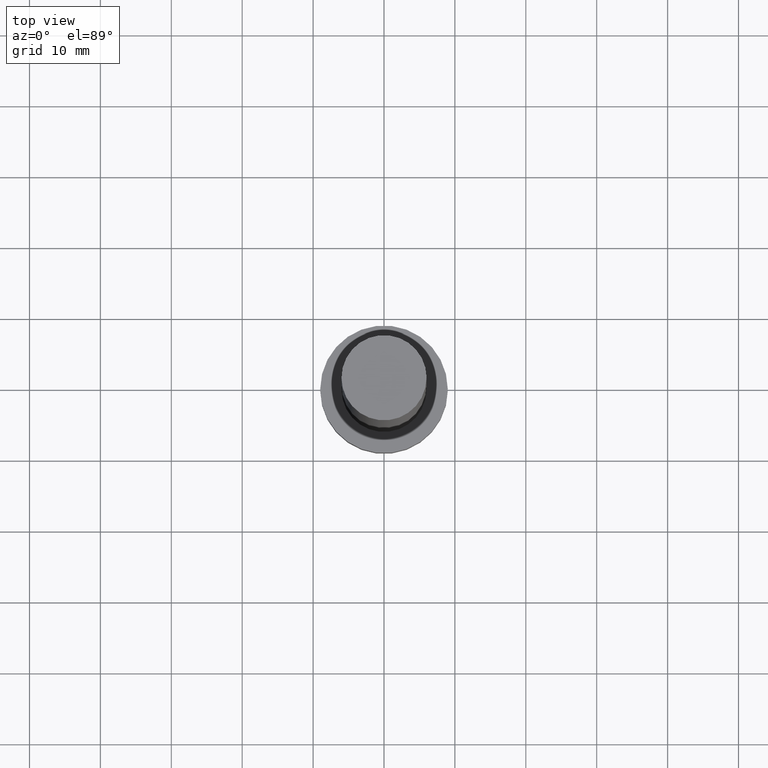
[diagram: clean part render]
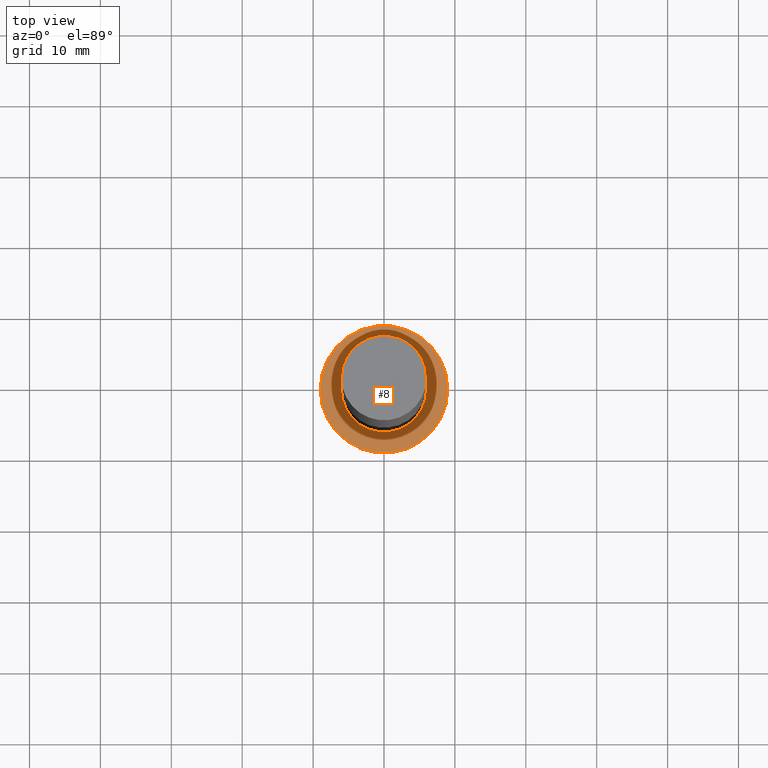
[diagram: same view with one face highlighted and labeled with its STEP entity id]
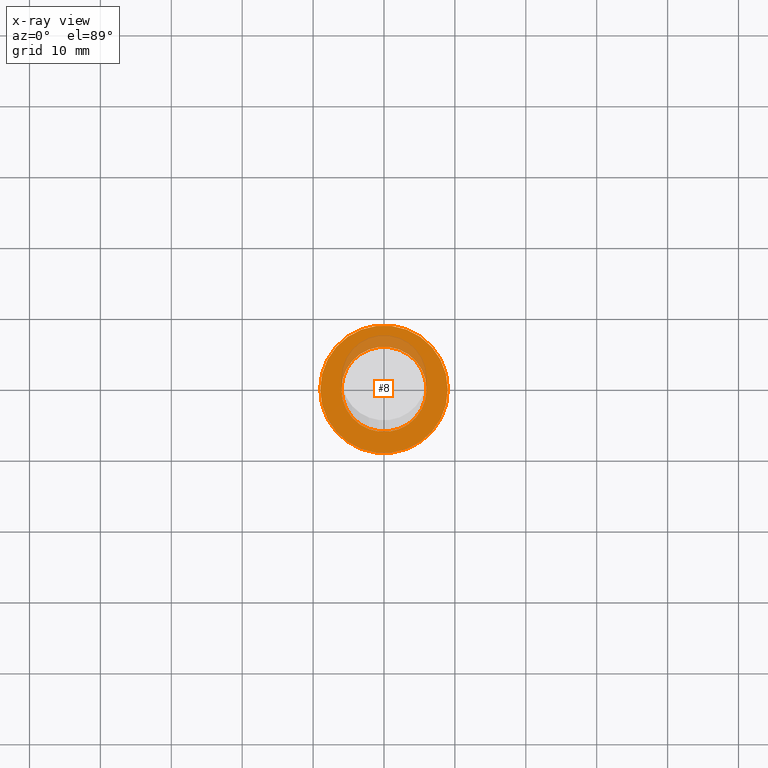
[diagram: x-ray of the same camera — body ghosted, the highlighted face saturated]
A machine part, top view. The second image highlights one B-rep face of the part: STEP entity #8.
The next image is the same camera in x-ray: the body ghosted, the highlighted face saturated — about 14% of this face is hidden behind the body in this view.
In plain terms, the highlighted planar face has unit normal (0, 0, 1).
Its self-contained STEP definition (entity closure, byte-faithful):
#8 = ADVANCED_FACE ( 'NONE', ( #182, #87 ), #131, .T. ) ;
#10 = CARTESIAN_POINT ( 'NONE',  ( 0.000000000000000000, 0.000000000000000000, 7.000000000000000000 ) ) ;
#19 = ORIENTED_EDGE ( 'NONE', *, *, #158, .F. ) ;
#26 = AXIS2_PLACEMENT_3D ( 'NONE', #10, #145, #77 ) ;
#27 = EDGE_CURVE ( 'NONE', #172, #53, #114, .T. ) ;
#37 = ORIENTED_EDGE ( 'NONE', *, *, #242, .T. ) ;
#44 = CARTESIAN_POINT ( 'NONE',  ( 0.000000000000000000, 0.000000000000000000, 7.000000000000000000 ) ) ;
#53 = VERTEX_POINT ( 'NONE', #249 ) ;
#56 = EDGE_LOOP ( 'NONE', ( #37, #211 ) ) ;
#64 = CARTESIAN_POINT ( 'NONE',  ( 9.000000000000000000, 1.102182119232617714E-15, 7.000000000000000000 ) ) ;
#67 = CIRCLE ( 'NONE', #108, 9.000000000000000000 ) ;
#77 = DIRECTION ( 'NONE',  ( 1.000000000000000000, 0.000000000000000000, 0.000000000000000000 ) ) ;
#78 = CARTESIAN_POINT ( 'NONE',  ( -9.000000000000000000, 0.000000000000000000, 7.000000000000000000 ) ) ;
#87 = FACE_OUTER_BOUND ( 'NONE', #56, .T. ) ;
#88 = AXIS2_PLACEMENT_3D ( 'NONE', #44, #151, #92 ) ;
#92 = DIRECTION ( 'NONE',  ( 1.000000000000000000, 0.000000000000000000, -0.000000000000000000 ) ) ;
#93 = AXIS2_PLACEMENT_3D ( 'NONE', #134, #94, #118 ) ;
#94 = DIRECTION ( 'NONE',  ( 0.000000000000000000, 0.000000000000000000, 1.000000000000000000 ) ) ;
#97 = CARTESIAN_POINT ( 'NONE',  ( -6.000000000000000888, 0.000000000000000000, 7.000000000000000000 ) ) ;
#108 = AXIS2_PLACEMENT_3D ( 'NONE', #210, #245, #186 ) ;
#114 = CIRCLE ( 'NONE', #26, 6.000000000000000888 ) ;
#118 = DIRECTION ( 'NONE',  ( 1.000000000000000000, 0.000000000000000000, 0.000000000000000000 ) ) ;
#123 = AXIS2_PLACEMENT_3D ( 'NONE', #141, #189, #205 ) ;
#131 = PLANE ( 'NONE',  #88 ) ;
#134 = CARTESIAN_POINT ( 'NONE',  ( 0.000000000000000000, 0.000000000000000000, 7.000000000000000000 ) ) ;
#141 = CARTESIAN_POINT ( 'NONE',  ( 0.000000000000000000, 0.000000000000000000, 7.000000000000000000 ) ) ;
#145 = DIRECTION ( 'NONE',  ( 0.000000000000000000, 0.000000000000000000, 1.000000000000000000 ) ) ;
#146 = VERTEX_POINT ( 'NONE', #78 ) ;
#149 = ORIENTED_EDGE ( 'NONE', *, *, #27, .F. ) ;
#151 = DIRECTION ( 'NONE',  ( 0.000000000000000000, 0.000000000000000000, 1.000000000000000000 ) ) ;
#152 = EDGE_LOOP ( 'NONE', ( #149, #19 ) ) ;
#158 = EDGE_CURVE ( 'NONE', #53, #172, #217, .T. ) ;
#172 = VERTEX_POINT ( 'NONE', #97 ) ;
#182 = FACE_BOUND ( 'NONE', #152, .T. ) ;
#186 = DIRECTION ( 'NONE',  ( 1.000000000000000000, 0.000000000000000000, 0.000000000000000000 ) ) ;
#189 = DIRECTION ( 'NONE',  ( 0.000000000000000000, 0.000000000000000000, 1.000000000000000000 ) ) ;
#195 = CIRCLE ( 'NONE', #123, 9.000000000000000000 ) ;
#205 = DIRECTION ( 'NONE',  ( 1.000000000000000000, 0.000000000000000000, 0.000000000000000000 ) ) ;
#210 = CARTESIAN_POINT ( 'NONE',  ( 0.000000000000000000, 0.000000000000000000, 7.000000000000000000 ) ) ;
#211 = ORIENTED_EDGE ( 'NONE', *, *, #218, .T. ) ;
#217 = CIRCLE ( 'NONE', #93, 6.000000000000000888 ) ;
#218 = EDGE_CURVE ( 'NONE', #238, #146, #67, .T. ) ;
#238 = VERTEX_POINT ( 'NONE', #64 ) ;
#242 = EDGE_CURVE ( 'NONE', #146, #238, #195, .T. ) ;
#245 = DIRECTION ( 'NONE',  ( 0.000000000000000000, 0.000000000000000000, 1.000000000000000000 ) ) ;
#249 = CARTESIAN_POINT ( 'NONE',  ( 6.000000000000000888, 7.347880794884119736E-16, 7.000000000000000000 ) ) ;